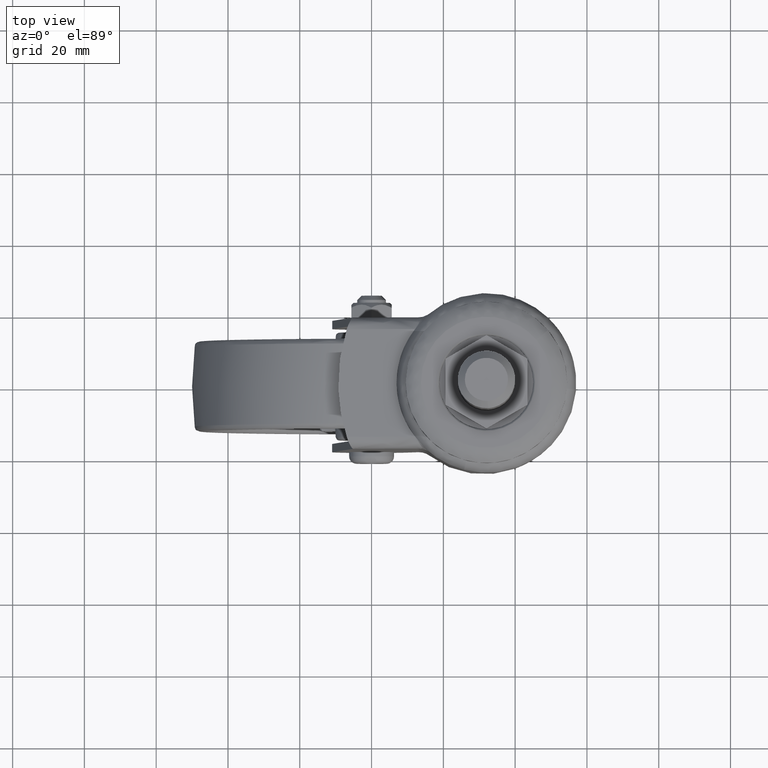
[diagram: clean part render]
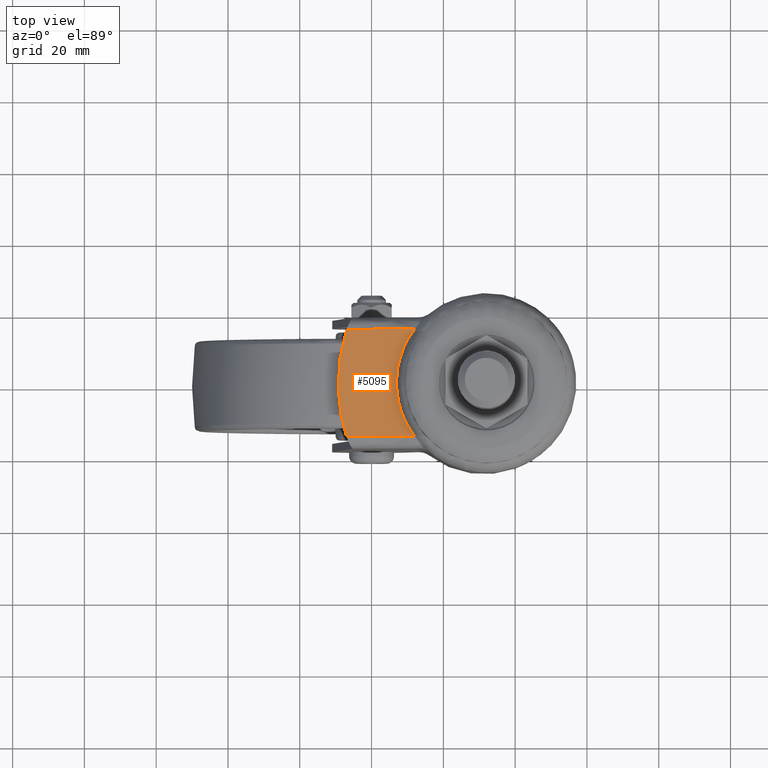
[diagram: same view with one face highlighted and labeled with its STEP entity id]
A machine part, top view. The second image highlights one B-rep face of the part: STEP entity #5095.
In plain terms, the highlighted face is a freeform B-spline surface patch.
Its self-contained STEP definition (entity closure, byte-faithful):
#3374=CARTESIAN_POINT('',(12.092780426300401,14.999990000000000,60.270112391757898));
#3375=VERTEX_POINT('',#3374);
#3489=CARTESIAN_POINT('',(12.092784416674540,-14.999995000000039,60.270113095368302));
#3490=VERTEX_POINT('',#3489);
#3506=CARTESIAN_POINT('',(12.092784416674540,-14.999995000000039,60.270113095368302));
#3507=CARTESIAN_POINT('',(9.586914548648743,-11.859828696188289,59.828260743841973));
#3508=CARTESIAN_POINT('',(8.248403230446971,-7.936932919974216,59.592245146608249));
#3509=CARTESIAN_POINT('',(6.928782517232540,-4.069401542632245,59.359560471838577));
#3510=CARTESIAN_POINT('',(6.929964610041198,0.008150225393799,59.359768906639573));
#3511=CARTESIAN_POINT('',(6.931152936749060,4.107205420688653,59.359978440644880));
#3512=CARTESIAN_POINT('',(8.247931851688730,7.956285679843744,59.592162029836928));
#3513=CARTESIAN_POINT('',(9.580661018454245,11.851990166297790,59.827158078034373));
#3514=CARTESIAN_POINT('',(12.092780426300401,14.999990000000000,60.270112391757898));
#3515=B_SPLINE_CURVE_WITH_KNOTS('',2,(#3506,#3507,#3508,#3509,#3510,#3511,#3512,#3513,#3514),.UNSPECIFIED.,.F.,.U.,(3,2,2,2,3),(0.0,0.250000000000000,0.500000000000000,0.750000000000000,1.0),.UNSPECIFIED.);
#3516=EDGE_CURVE('',#3490,#3375,#3515,.T.);
#4272=CARTESIAN_POINT('',(-6.924999607116350,-14.999995000000039,56.916765541709204));
#4273=VERTEX_POINT('',#4272);
#4274=CARTESIAN_POINT('',(-6.924999607116350,-14.999995000000039,56.916765541709204));
#4275=CARTESIAN_POINT('',(12.092784416674540,-14.999995000000039,60.270113095368302));
#4276=QUASI_UNIFORM_CURVE('',1,(#4274,#4275),.UNSPECIFIED.,.F.,.U.);
#4277=EDGE_CURVE('',#4273,#3490,#4276,.T.);
#4369=CARTESIAN_POINT('',(-6.925001224186230,14.999990000000000,56.916765256576198));
#4370=VERTEX_POINT('',#4369);
#4400=CARTESIAN_POINT('',(12.092780426300401,14.999990000000000,60.270112391757898));
#4401=CARTESIAN_POINT('',(-6.925001224186230,14.999990000000000,56.916765256576198));
#4402=QUASI_UNIFORM_CURVE('',1,(#4400,#4401),.UNSPECIFIED.,.F.,.U.);
#4403=EDGE_CURVE('',#3375,#4370,#4402,.T.);
#5072=CARTESIAN_POINT('',(13.160780834195480,-16.498494474222650,60.458429629488720));
#5073=CARTESIAN_POINT('',(-10.356506226356720,-16.498494474222650,56.311698499586988));
#5074=CARTESIAN_POINT('',(13.160780834195480,16.498490010664138,60.458429629488720));
#5075=CARTESIAN_POINT('',(-10.356506226356711,16.498490010664138,56.311698499586988));
#5076=B_SPLINE_SURFACE_WITH_KNOTS('',1,1,((#5072,#5074),(#5073,#5075)),.UNSPECIFIED.,.F.,.F.,.U.,(2,2),(2,2),(0.0,23.880078931027668),(0.0,32.996984484886802),.UNSPECIFIED.);
#5077=ORIENTED_EDGE('',*,*,#4277,.T.);
#5078=ORIENTED_EDGE('',*,*,#3516,.T.);
#5079=ORIENTED_EDGE('',*,*,#4403,.T.);
#5080=CARTESIAN_POINT('',(-6.925001224186225,14.999989999999990,56.916765256576213));
#5081=CARTESIAN_POINT('',(-11.776207559479825,-0.000002769621591,56.061366915928232));
#5082=CARTESIAN_POINT('',(-6.924999607116365,-14.999995000000011,56.916765541709182));
#5090=(BOUNDED_CURVE()B_SPLINE_CURVE(2,(#5080,#5081,#5082),.UNSPECIFIED.,.F.,.U.)CURVE()GEOMETRIC_REPRESENTATION_ITEM()QUASI_UNIFORM_CURVE()RATIONAL_B_SPLINE_CURVE((1.0,0.950079150635109,1.0))REPRESENTATION_ITEM(''));
#5091=EDGE_CURVE('',#4370,#4273,#5090,.T.);
#5092=ORIENTED_EDGE('',*,*,#5091,.T.);
#5093=EDGE_LOOP('',(#5077,#5078,#5079,#5092));
#5094=FACE_OUTER_BOUND('',#5093,.T.);
#5095=ADVANCED_FACE('',(#5094),#5076,.F.);